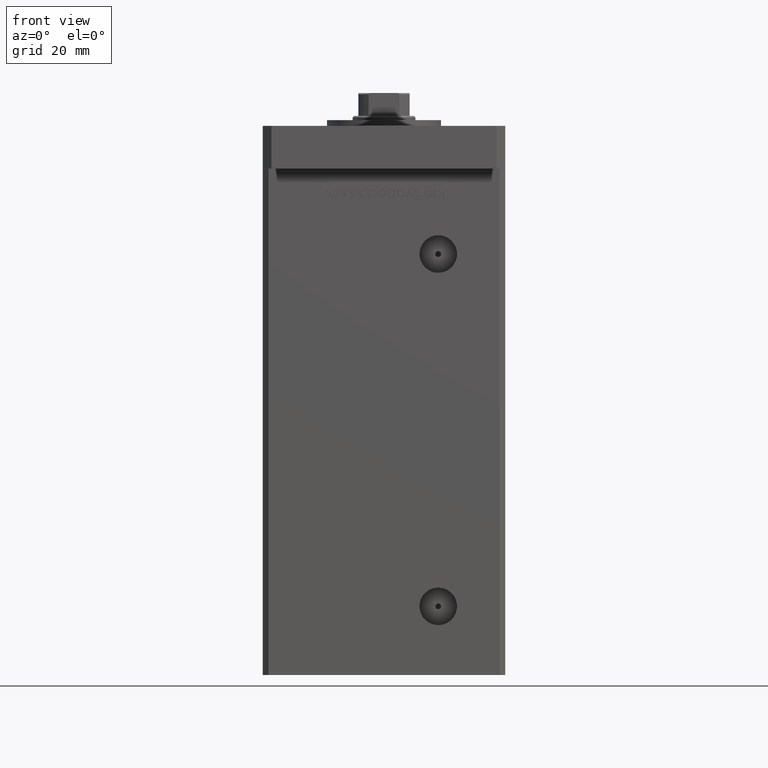
[diagram: clean part render]
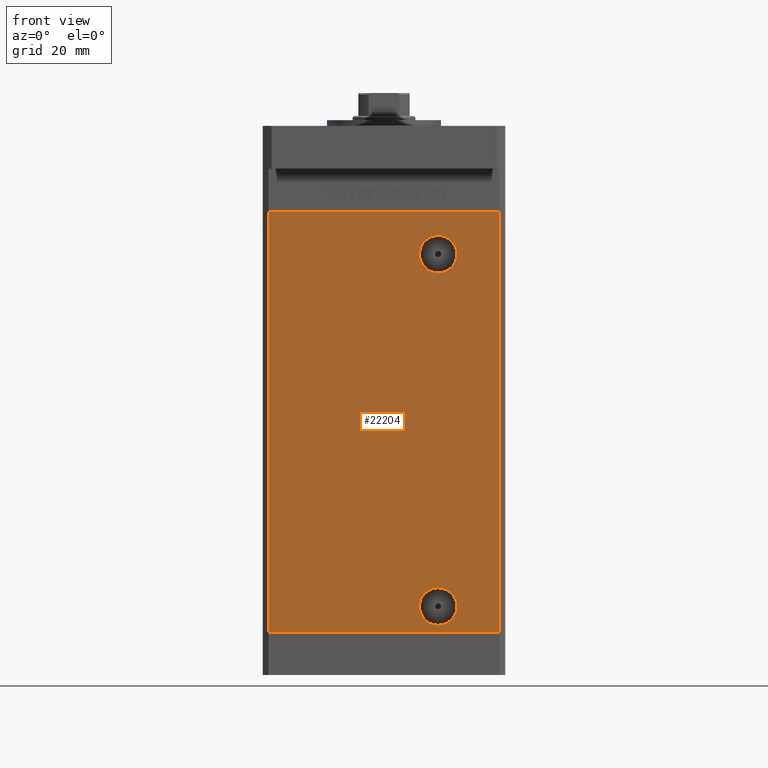
[diagram: same view with one face highlighted and labeled with its STEP entity id]
A machine part, front view. The second image highlights one B-rep face of the part: STEP entity #22204.
In plain terms, the highlighted planar face has unit normal (0, 1, 0).
Its self-contained STEP definition (entity closure, byte-faithful):
#209 = CARTESIAN_POINT ( 'NONE',  ( -40.49999999999998579, -37.50000000000000711, 147.5000000000000000 ) ) ;
#4166 = CIRCLE ( 'NONE', #7647, 6.579999999999998295 ) ;
#4554 = VECTOR ( 'NONE', #28979, 1000.000000000000000 ) ;
#4855 = CARTESIAN_POINT ( 'NONE',  ( 18.99999999999997513, -37.50000000000000711, 132.5000000000000000 ) ) ;
#5934 = EDGE_CURVE ( 'NONE', #43098, #27341, #4166, .T. ) ;
#6228 = DIRECTION ( 'NONE',  ( 1.000000000000000000, 0.000000000000000000, 0.000000000000000000 ) ) ;
#6494 = ORIENTED_EDGE ( 'NONE', *, *, #6605, .T. ) ;
#6605 = EDGE_CURVE ( 'NONE', #23645, #52995, #9444, .T. ) ;
#7647 = AXIS2_PLACEMENT_3D ( 'NONE', #12312, #32377, #36722 ) ;
#7974 = EDGE_LOOP ( 'NONE', ( #19393, #39761 ) ) ;
#8164 = EDGE_LOOP ( 'NONE', ( #12143, #9773, #43846, #17640 ) ) ;
#8800 = VERTEX_POINT ( 'NONE', #19051 ) ;
#8904 = CARTESIAN_POINT ( 'NONE',  ( -40.49999999999998579, -37.50000000000000711, 147.5000000000000000 ) ) ;
#9283 = CARTESIAN_POINT ( 'NONE',  ( 40.49999999999998579, -37.50000000000000711, 147.5000000000000000 ) ) ;
#9444 = CIRCLE ( 'NONE', #48382, 6.580000000000002736 ) ;
#9536 = LINE ( 'NONE', #9283, #13233 ) ;
#9773 = ORIENTED_EDGE ( 'NONE', *, *, #21700, .F. ) ;
#12143 = ORIENTED_EDGE ( 'NONE', *, *, #29256, .T. ) ;
#12312 = CARTESIAN_POINT ( 'NONE',  ( 18.99999999999998934, -37.50000000000000711, 9.000000000000007105 ) ) ;
#13233 = VECTOR ( 'NONE', #38829, 1000.000000000000000 ) ;
#14111 = LINE ( 'NONE', #43402, #51230 ) ;
#15058 = ORIENTED_EDGE ( 'NONE', *, *, #43435, .T. ) ;
#15068 = CARTESIAN_POINT ( 'NONE',  ( -40.49999999999998579, -37.50000000000000711, 0.000000000000000000 ) ) ;
#16065 = DIRECTION ( 'NONE',  ( -0.000000000000000000, 1.000000000000000000, -0.000000000000000000 ) ) ;
#17021 = CARTESIAN_POINT ( 'NONE',  ( 40.49999999999998579, -37.50000000000000711, 0.000000000000000000 ) ) ;
#17640 = ORIENTED_EDGE ( 'NONE', *, *, #42815, .T. ) ;
#19051 = CARTESIAN_POINT ( 'NONE',  ( 40.49999999999998579, -37.50000000000000711, 147.5000000000000000 ) ) ;
#19393 = ORIENTED_EDGE ( 'NONE', *, *, #5934, .F. ) ;
#20124 = CIRCLE ( 'NONE', #40929, 6.580000000000002736 ) ;
#20288 = DIRECTION ( 'NONE',  ( 0.000000000000000000, 1.000000000000000000, 0.000000000000000000 ) ) ;
#21129 = AXIS2_PLACEMENT_3D ( 'NONE', #26635, #26107, #51592 ) ;
#21421 = DIRECTION ( 'NONE',  ( -0.000000000000000000, 1.000000000000000000, -0.000000000000000000 ) ) ;
#21700 = EDGE_CURVE ( 'NONE', #8800, #33417, #9536, .T. ) ;
#22204 = ADVANCED_FACE ( 'NONE', ( #32746, #48765, #28683 ), #24346, .F. ) ;
#23645 = VERTEX_POINT ( 'NONE', #47582 ) ;
#24346 = PLANE ( 'NONE',  #51334 ) ;
#24619 = DIRECTION ( 'NONE',  ( 0.000000000000000000, -0.000000000000000000, 1.000000000000000000 ) ) ;
#26107 = DIRECTION ( 'NONE',  ( 0.000000000000000000, -1.000000000000000000, 0.000000000000000000 ) ) ;
#26635 = CARTESIAN_POINT ( 'NONE',  ( 18.99999999999998934, -37.50000000000000711, 9.000000000000007105 ) ) ;
#27341 = VERTEX_POINT ( 'NONE', #34633 ) ;
#27798 = DIRECTION ( 'NONE',  ( 1.000000000000000000, 0.000000000000000000, 0.000000000000000000 ) ) ;
#28101 = VERTEX_POINT ( 'NONE', #53475 ) ;
#28145 = CARTESIAN_POINT ( 'NONE',  ( -40.49999999999998579, -37.50000000000000711, 147.5000000000000000 ) ) ;
#28683 = FACE_BOUND ( 'NONE', #36809, .T. ) ;
#28979 = DIRECTION ( 'NONE',  ( -0.000000000000000000, -0.000000000000000000, -1.000000000000000000 ) ) ;
#29256 = EDGE_CURVE ( 'NONE', #28101, #33417, #48691, .T. ) ;
#30539 = EDGE_CURVE ( 'NONE', #27341, #43098, #30635, .T. ) ;
#30635 = CIRCLE ( 'NONE', #21129, 6.579999999999998295 ) ;
#32329 = VECTOR ( 'NONE', #27798, 1000.000000000000000 ) ;
#32377 = DIRECTION ( 'NONE',  ( 0.000000000000000000, -1.000000000000000000, 0.000000000000000000 ) ) ;
#32513 = LINE ( 'NONE', #8904, #4554 ) ;
#32746 = FACE_BOUND ( 'NONE', #7974, .T. ) ;
#33417 = VERTEX_POINT ( 'NONE', #17021 ) ;
#34633 = CARTESIAN_POINT ( 'NONE',  ( 18.99999999999998934, -37.50000000000000711, 15.58000000000000718 ) ) ;
#35658 = VERTEX_POINT ( 'NONE', #209 ) ;
#36722 = DIRECTION ( 'NONE',  ( 0.000000000000000000, 0.000000000000000000, -1.000000000000000000 ) ) ;
#36809 = EDGE_LOOP ( 'NONE', ( #15058, #6494 ) ) ;
#37048 = CARTESIAN_POINT ( 'NONE',  ( 18.99999999999998934, -37.50000000000000711, 2.420000000000009699 ) ) ;
#38698 = EDGE_CURVE ( 'NONE', #35658, #8800, #14111, .T. ) ;
#38829 = DIRECTION ( 'NONE',  ( -0.000000000000000000, -0.000000000000000000, -1.000000000000000000 ) ) ;
#39286 = DIRECTION ( 'NONE',  ( 0.000000000000000000, 0.000000000000000000, -1.000000000000000000 ) ) ;
#39761 = ORIENTED_EDGE ( 'NONE', *, *, #30539, .F. ) ;
#40488 = CARTESIAN_POINT ( 'NONE',  ( 18.99999999999997513, -37.50000000000000711, 125.9200000000000017 ) ) ;
#40929 = AXIS2_PLACEMENT_3D ( 'NONE', #53210, #16065, #45084 ) ;
#42815 = EDGE_CURVE ( 'NONE', #35658, #28101, #32513, .T. ) ;
#43098 = VERTEX_POINT ( 'NONE', #37048 ) ;
#43402 = CARTESIAN_POINT ( 'NONE',  ( -40.49999999999998579, -37.50000000000000711, 147.5000000000000000 ) ) ;
#43435 = EDGE_CURVE ( 'NONE', #52995, #23645, #20124, .T. ) ;
#43846 = ORIENTED_EDGE ( 'NONE', *, *, #38698, .F. ) ;
#45084 = DIRECTION ( 'NONE',  ( 0.000000000000000000, 0.000000000000000000, -1.000000000000000000 ) ) ;
#47582 = CARTESIAN_POINT ( 'NONE',  ( 18.99999999999997513, -37.50000000000000711, 139.0800000000000125 ) ) ;
#48382 = AXIS2_PLACEMENT_3D ( 'NONE', #4855, #21421, #39286 ) ;
#48691 = LINE ( 'NONE', #15068, #32329 ) ;
#48765 = FACE_OUTER_BOUND ( 'NONE', #8164, .T. ) ;
#51230 = VECTOR ( 'NONE', #6228, 1000.000000000000000 ) ;
#51334 = AXIS2_PLACEMENT_3D ( 'NONE', #28145, #20288, #24619 ) ;
#51592 = DIRECTION ( 'NONE',  ( 0.000000000000000000, 0.000000000000000000, -1.000000000000000000 ) ) ;
#52995 = VERTEX_POINT ( 'NONE', #40488 ) ;
#53210 = CARTESIAN_POINT ( 'NONE',  ( 18.99999999999997513, -37.50000000000000711, 132.5000000000000000 ) ) ;
#53475 = CARTESIAN_POINT ( 'NONE',  ( -40.49999999999998579, -37.50000000000000711, 0.000000000000000000 ) ) ;